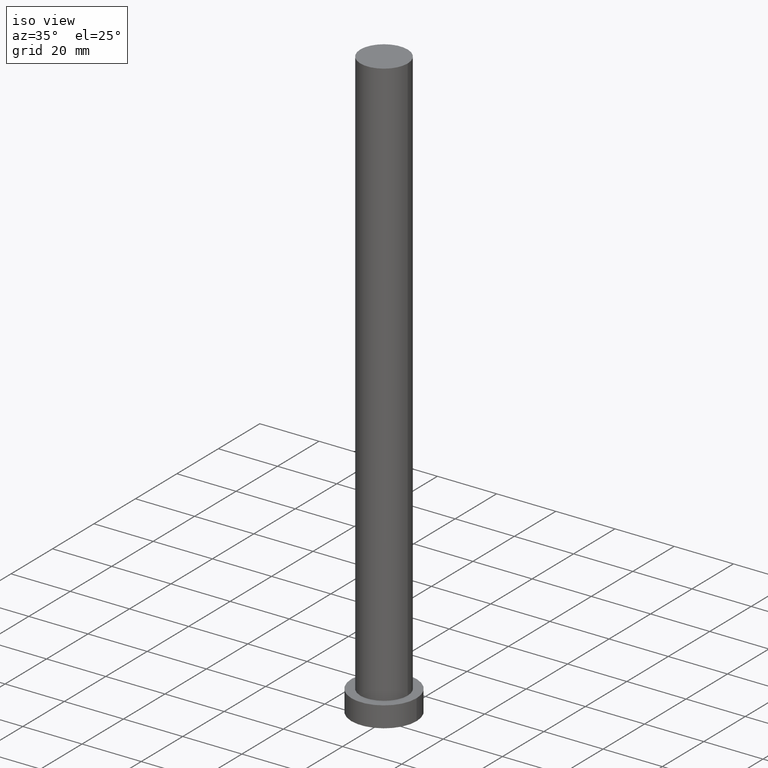
[diagram: clean part render]
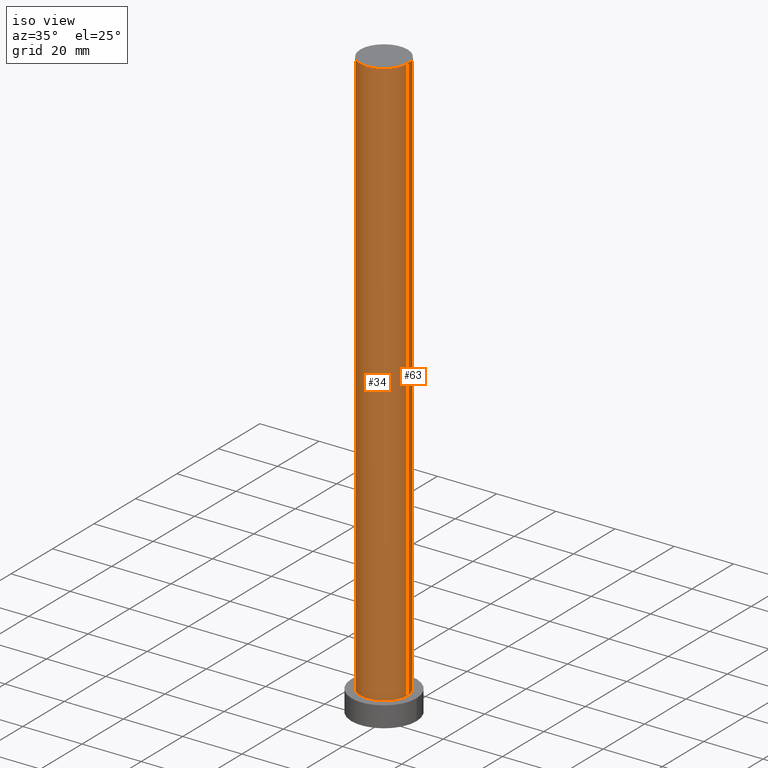
[diagram: same view with one multi-face feature highlighted, each face labeled with its STEP entity id]
A machine part, iso view. The highlighted faces form ONE feature: a constant-radius fillet chain: 2 tangent blend faces with common blend radius 8 mm. The faces share edges in the B-rep.
Their STEP definitions:
[1] entity #34 (Cylinder):
#6 = CARTESIAN_POINT ( 'NONE',  ( 8.000000000000000000, 9.797174393178825657E-16, 200.0000000000000000 ) ) ;
#7 = CIRCLE ( 'NONE', #41, 8.000000000000000000 ) ;
#15 = DIRECTION ( 'NONE',  ( -0.000000000000000000, -0.000000000000000000, -1.000000000000000000 ) ) ;
#34 = ADVANCED_FACE ( 'NONE', ( #233 ), #55, .T. ) ;
#37 = ORIENTED_EDGE ( 'NONE', *, *, #217, .F. ) ;
#41 = AXIS2_PLACEMENT_3D ( 'NONE', #254, #133, #213 ) ;
#55 = CYLINDRICAL_SURFACE ( 'NONE', #223, 8.000000000000000000 ) ;
#56 = CIRCLE ( 'NONE', #187, 8.000000000000000000 ) ;
#67 = EDGE_CURVE ( 'NONE', #250, #76, #7, .T. ) ;
#71 = DIRECTION ( 'NONE',  ( 1.000000000000000000, 0.000000000000000000, 0.000000000000000000 ) ) ;
#76 = VERTEX_POINT ( 'NONE', #219 ) ;
#78 = VECTOR ( 'NONE', #197, 1000.000000000000000 ) ;
#87 = CARTESIAN_POINT ( 'NONE',  ( 8.000000000000000000, 9.797174393178825657E-16, 200.0000000000000000 ) ) ;
#89 = CARTESIAN_POINT ( 'NONE',  ( 0.000000000000000000, 0.000000000000000000, 200.0000000000000000 ) ) ;
#94 = ORIENTED_EDGE ( 'NONE', *, *, #158, .F. ) ;
#101 = VECTOR ( 'NONE', #116, 1000.000000000000000 ) ;
#102 = EDGE_CURVE ( 'NONE', #143, #250, #148, .T. ) ;
#116 = DIRECTION ( 'NONE',  ( -0.000000000000000000, -0.000000000000000000, -1.000000000000000000 ) ) ;
#118 = CARTESIAN_POINT ( 'NONE',  ( -8.000000000000000000, 0.000000000000000000, 200.0000000000000000 ) ) ;
#126 = VERTEX_POINT ( 'NONE', #6 ) ;
#133 = DIRECTION ( 'NONE',  ( 0.000000000000000000, 0.000000000000000000, 1.000000000000000000 ) ) ;
#143 = VERTEX_POINT ( 'NONE', #118 ) ;
#144 = CARTESIAN_POINT ( 'NONE',  ( 0.000000000000000000, 0.000000000000000000, 200.0000000000000000 ) ) ;
#148 = LINE ( 'NONE', #167, #101 ) ;
#158 = EDGE_CURVE ( 'NONE', #143, #126, #56, .T. ) ;
#164 = ORIENTED_EDGE ( 'NONE', *, *, #102, .T. ) ;
#166 = ORIENTED_EDGE ( 'NONE', *, *, #67, .T. ) ;
#167 = CARTESIAN_POINT ( 'NONE',  ( -8.000000000000000000, 0.000000000000000000, 200.0000000000000000 ) ) ;
#187 = AXIS2_PLACEMENT_3D ( 'NONE', #89, #224, #71 ) ;
#197 = DIRECTION ( 'NONE',  ( -0.000000000000000000, -0.000000000000000000, -1.000000000000000000 ) ) ;
#203 = DIRECTION ( 'NONE',  ( -1.000000000000000000, 0.000000000000000000, 0.000000000000000000 ) ) ;
#213 = DIRECTION ( 'NONE',  ( 1.000000000000000000, 0.000000000000000000, 0.000000000000000000 ) ) ;
#217 = EDGE_CURVE ( 'NONE', #126, #76, #241, .T. ) ;
#219 = CARTESIAN_POINT ( 'NONE',  ( 8.000000000000000000, 9.797174393178825657E-16, 7.000000000000000000 ) ) ;
#223 = AXIS2_PLACEMENT_3D ( 'NONE', #144, #15, #203 ) ;
#224 = DIRECTION ( 'NONE',  ( 0.000000000000000000, 0.000000000000000000, 1.000000000000000000 ) ) ;
#231 = EDGE_LOOP ( 'NONE', ( #37, #94, #164, #166 ) ) ;
#233 = FACE_OUTER_BOUND ( 'NONE', #231, .T. ) ;
#239 = CARTESIAN_POINT ( 'NONE',  ( -8.000000000000000000, 0.000000000000000000, 7.000000000000000000 ) ) ;
#241 = LINE ( 'NONE', #87, #78 ) ;
#250 = VERTEX_POINT ( 'NONE', #239 ) ;
#254 = CARTESIAN_POINT ( 'NONE',  ( 0.000000000000000000, 0.000000000000000000, 7.000000000000000000 ) ) ;
[2] entity #63 (Cylinder):
#6 = CARTESIAN_POINT ( 'NONE',  ( 8.000000000000000000, 9.797174393178825657E-16, 200.0000000000000000 ) ) ;
#10 = DIRECTION ( 'NONE',  ( 1.000000000000000000, 0.000000000000000000, 0.000000000000000000 ) ) ;
#17 = DIRECTION ( 'NONE',  ( 0.000000000000000000, 0.000000000000000000, 1.000000000000000000 ) ) ;
#29 = CARTESIAN_POINT ( 'NONE',  ( 0.000000000000000000, 0.000000000000000000, 200.0000000000000000 ) ) ;
#42 = FACE_OUTER_BOUND ( 'NONE', #192, .T. ) ;
#47 = EDGE_CURVE ( 'NONE', #76, #250, #168, .T. ) ;
#58 = ORIENTED_EDGE ( 'NONE', *, *, #163, .F. ) ;
#63 = ADVANCED_FACE ( 'NONE', ( #42 ), #189, .T. ) ;
#68 = DIRECTION ( 'NONE',  ( -1.000000000000000000, 0.000000000000000000, 0.000000000000000000 ) ) ;
#72 = AXIS2_PLACEMENT_3D ( 'NONE', #109, #175, #68 ) ;
#76 = VERTEX_POINT ( 'NONE', #219 ) ;
#78 = VECTOR ( 'NONE', #197, 1000.000000000000000 ) ;
#87 = CARTESIAN_POINT ( 'NONE',  ( 8.000000000000000000, 9.797174393178825657E-16, 200.0000000000000000 ) ) ;
#101 = VECTOR ( 'NONE', #116, 1000.000000000000000 ) ;
#102 = EDGE_CURVE ( 'NONE', #143, #250, #148, .T. ) ;
#108 = ORIENTED_EDGE ( 'NONE', *, *, #217, .T. ) ;
#109 = CARTESIAN_POINT ( 'NONE',  ( 0.000000000000000000, 0.000000000000000000, 200.0000000000000000 ) ) ;
#112 = AXIS2_PLACEMENT_3D ( 'NONE', #234, #17, #209 ) ;
#116 = DIRECTION ( 'NONE',  ( -0.000000000000000000, -0.000000000000000000, -1.000000000000000000 ) ) ;
#118 = CARTESIAN_POINT ( 'NONE',  ( -8.000000000000000000, 0.000000000000000000, 200.0000000000000000 ) ) ;
#126 = VERTEX_POINT ( 'NONE', #6 ) ;
#129 = ORIENTED_EDGE ( 'NONE', *, *, #47, .T. ) ;
#143 = VERTEX_POINT ( 'NONE', #118 ) ;
#148 = LINE ( 'NONE', #167, #101 ) ;
#163 = EDGE_CURVE ( 'NONE', #126, #143, #183, .T. ) ;
#167 = CARTESIAN_POINT ( 'NONE',  ( -8.000000000000000000, 0.000000000000000000, 200.0000000000000000 ) ) ;
#168 = CIRCLE ( 'NONE', #112, 8.000000000000000000 ) ;
#175 = DIRECTION ( 'NONE',  ( -0.000000000000000000, -0.000000000000000000, -1.000000000000000000 ) ) ;
#183 = CIRCLE ( 'NONE', #229, 8.000000000000000000 ) ;
#184 = DIRECTION ( 'NONE',  ( 0.000000000000000000, 0.000000000000000000, 1.000000000000000000 ) ) ;
#189 = CYLINDRICAL_SURFACE ( 'NONE', #72, 8.000000000000000000 ) ;
#192 = EDGE_LOOP ( 'NONE', ( #58, #108, #129, #249 ) ) ;
#197 = DIRECTION ( 'NONE',  ( -0.000000000000000000, -0.000000000000000000, -1.000000000000000000 ) ) ;
#209 = DIRECTION ( 'NONE',  ( 1.000000000000000000, 0.000000000000000000, 0.000000000000000000 ) ) ;
#217 = EDGE_CURVE ( 'NONE', #126, #76, #241, .T. ) ;
#219 = CARTESIAN_POINT ( 'NONE',  ( 8.000000000000000000, 9.797174393178825657E-16, 7.000000000000000000 ) ) ;
#229 = AXIS2_PLACEMENT_3D ( 'NONE', #29, #184, #10 ) ;
#234 = CARTESIAN_POINT ( 'NONE',  ( 0.000000000000000000, 0.000000000000000000, 7.000000000000000000 ) ) ;
#239 = CARTESIAN_POINT ( 'NONE',  ( -8.000000000000000000, 0.000000000000000000, 7.000000000000000000 ) ) ;
#241 = LINE ( 'NONE', #87, #78 ) ;
#249 = ORIENTED_EDGE ( 'NONE', *, *, #102, .F. ) ;
#250 = VERTEX_POINT ( 'NONE', #239 ) ;